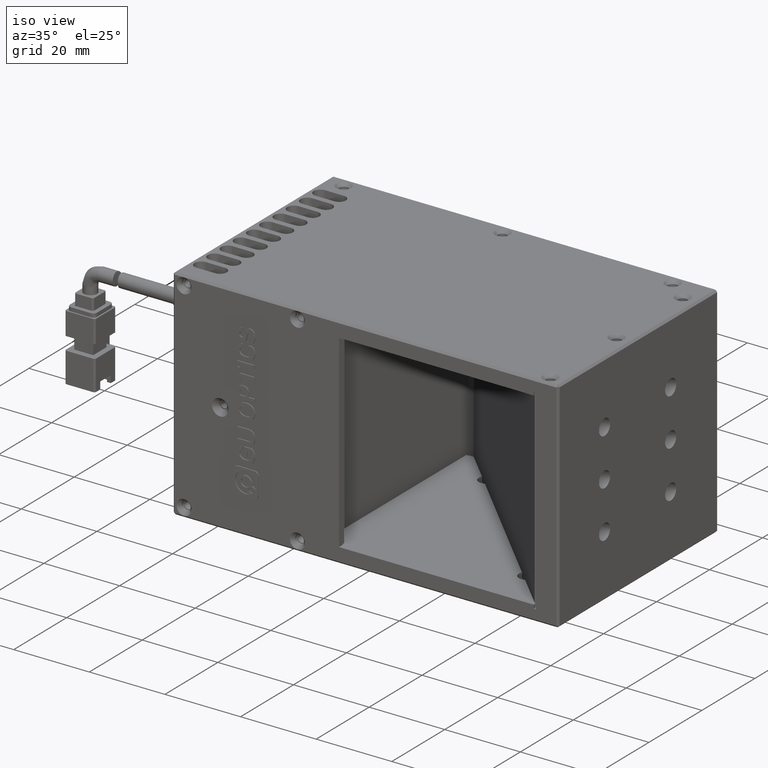
[diagram: clean part render]
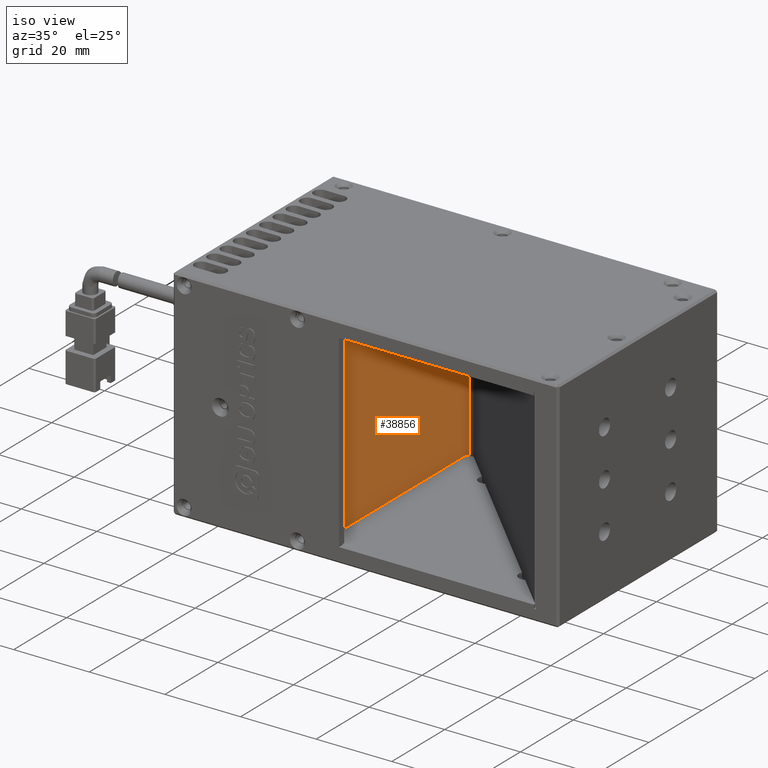
[diagram: same view with one face highlighted and labeled with its STEP entity id]
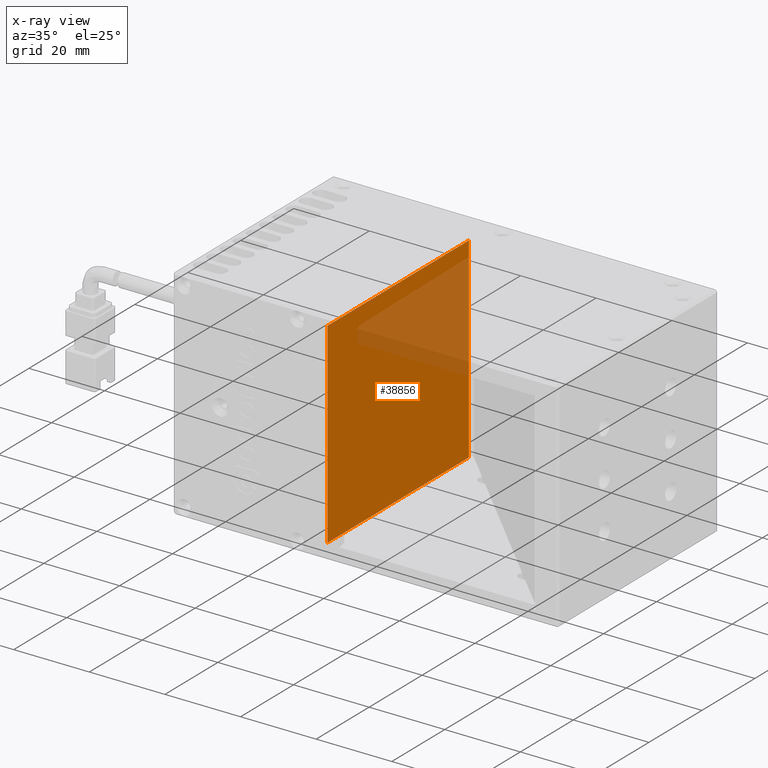
[diagram: x-ray of the same camera — body ghosted, the highlighted face saturated]
A machine part, iso view. The second image highlights one B-rep face of the part: STEP entity #38856.
The next image is the same camera in x-ray: the body ghosted, the highlighted face saturated — about 25% of this face is hidden behind the body in this view.
In plain terms, the highlighted planar face has unit normal (1, 0, 0).
Its self-contained STEP definition (entity closure, byte-faithful):
#985 = CARTESIAN_POINT ( 'NONE',  ( -29.07424922391151500, -5.723006669097353300, 3.000000000009550600 ) ) ;
#1831 = DIRECTION ( 'NONE',  ( 1.000000000000000000, 2.182514033342871100E-016, 0.0000000000000000000 ) ) ;
#6329 = DIRECTION ( 'NONE',  ( -2.182514033342871100E-016, 1.000000000000000000, -2.182514033342871100E-016 ) ) ;
#6641 = CARTESIAN_POINT ( 'NONE',  ( -29.07424922391151500, -5.723006669097342700, 54.90000000000957000 ) ) ;
#6928 = PLANE ( 'NONE',  #27011 ) ;
#7478 = CARTESIAN_POINT ( 'NONE',  ( -29.07424922391151500, -5.723006669097342700, 54.90000000000956200 ) ) ;
#8264 = CARTESIAN_POINT ( 'NONE',  ( -29.07424922391151500, -5.723006669097342700, 54.90000000000956200 ) ) ;
#9115 = ORIENTED_EDGE ( 'NONE', *, *, #61371, .T. ) ;
#10446 = VERTEX_POINT ( 'NONE', #27794 ) ;
#12252 = EDGE_CURVE ( 'NONE', #56805, #13545, #14088, .T. ) ;
#13005 = VECTOR ( 'NONE', #43978, 1000.000000000000000 ) ;
#13545 = VERTEX_POINT ( 'NONE', #27461 ) ;
#13590 = DIRECTION ( 'NONE',  ( 4.763367505738566700E-032, -2.182514033342871100E-016, -1.000000000000000000 ) ) ;
#14088 = LINE ( 'NONE', #21066, #42302 ) ;
#20203 = LINE ( 'NONE', #985, #46752 ) ;
#20305 = ORIENTED_EDGE ( 'NONE', *, *, #41324, .T. ) ;
#21066 = CARTESIAN_POINT ( 'NONE',  ( -29.07424922391152600, 47.77699333090266300, 54.90000000000954800 ) ) ;
#26760 = FACE_OUTER_BOUND ( 'NONE', #58687, .T. ) ;
#27011 = AXIS2_PLACEMENT_3D ( 'NONE', #33594, #1831, #38904 ) ;
#27461 = CARTESIAN_POINT ( 'NONE',  ( -29.07424922391152600, 47.77699333090266300, 54.90000000000955500 ) ) ;
#27794 = CARTESIAN_POINT ( 'NONE',  ( -29.07424922391151500, -5.723006669097353300, 3.000000000009550600 ) ) ;
#33594 = CARTESIAN_POINT ( 'NONE',  ( -29.07424922391151500, -5.723006669097342700, 54.90000000000956200 ) ) ;
#38856 = ADVANCED_FACE ( 'NONE', ( #26760 ), #6928, .T. ) ;
#38904 = DIRECTION ( 'NONE',  ( 4.763367505738566700E-032, -2.182514033342871100E-016, -1.000000000000000000 ) ) ;
#41194 = LINE ( 'NONE', #6641, #13005 ) ;
#41324 = EDGE_CURVE ( 'NONE', #13545, #64082, #41194, .T. ) ;
#42302 = VECTOR ( 'NONE', #52576, 1000.000000000000000 ) ;
#42403 = ORIENTED_EDGE ( 'NONE', *, *, #12252, .T. ) ;
#42780 = CARTESIAN_POINT ( 'NONE',  ( -29.07424922391152600, 47.77699333090265600, 3.000000000009550600 ) ) ;
#43978 = DIRECTION ( 'NONE',  ( 2.182514033342871100E-016, -1.000000000000000000, 2.182514033342871100E-016 ) ) ;
#44598 = ORIENTED_EDGE ( 'NONE', *, *, #46582, .T. ) ;
#46582 = EDGE_CURVE ( 'NONE', #64082, #10446, #50537, .T. ) ;
#46752 = VECTOR ( 'NONE', #6329, 1000.000000000000000 ) ;
#48875 = VECTOR ( 'NONE', #13590, 1000.000000000000000 ) ;
#50537 = LINE ( 'NONE', #8264, #48875 ) ;
#52576 = DIRECTION ( 'NONE',  ( -4.763367505738566700E-032, 2.182514033342871100E-016, 1.000000000000000000 ) ) ;
#56805 = VERTEX_POINT ( 'NONE', #42780 ) ;
#58687 = EDGE_LOOP ( 'NONE', ( #9115, #42403, #20305, #44598 ) ) ;
#61371 = EDGE_CURVE ( 'NONE', #10446, #56805, #20203, .T. ) ;
#64082 = VERTEX_POINT ( 'NONE', #7478 ) ;